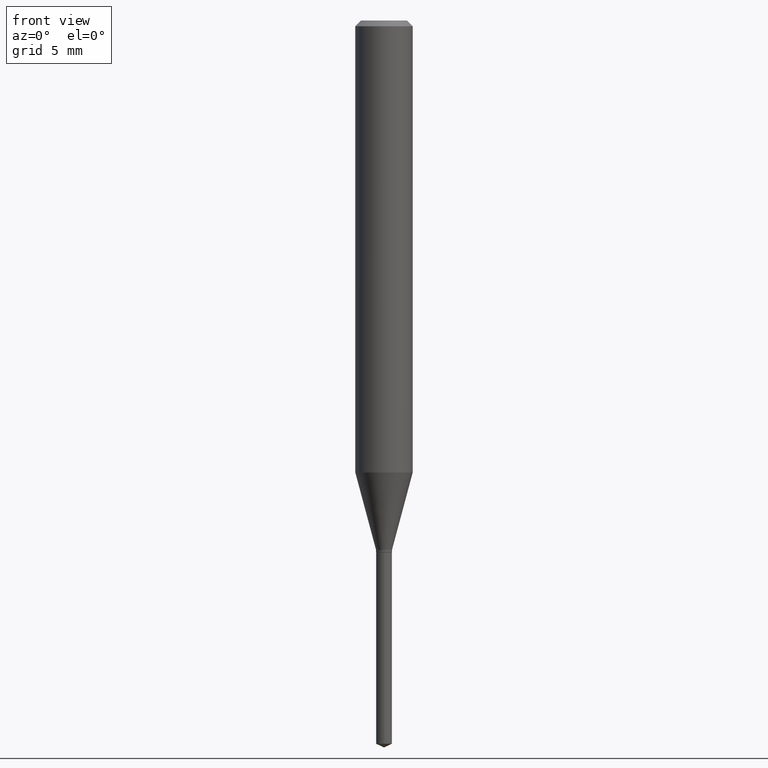
[diagram: clean part render]
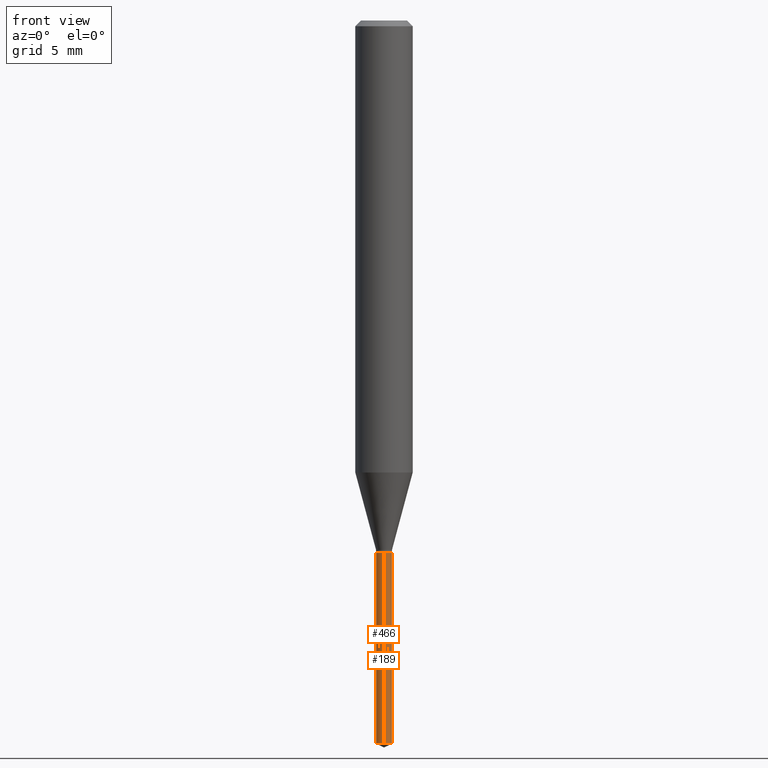
[diagram: same view with one multi-face feature highlighted, each face labeled with its STEP entity id]
A machine part, front view. The highlighted faces form ONE feature: a constant-radius fillet chain: 2 tangent blend faces with common blend radius 0.4153 mm. The faces share edges in the B-rep.
Their STEP definitions:
[1] entity #466 (Cylinder):
#5 = AXIS2_PLACEMENT_3D ( 'NONE', #285, #99, #211 ) ;
#10 = EDGE_CURVE ( 'NONE', #364, #276, #79, .T. ) ;
#25 = VERTEX_POINT ( 'NONE', #375 ) ;
#29 = CARTESIAN_POINT ( 'NONE',  ( 3.640018120713164370E-29, -5.196990287534057900E-15, -1.488475869789165795 ) ) ;
#62 = VERTEX_POINT ( 'NONE', #146 ) ;
#74 = DIRECTION ( 'NONE',  ( -6.982962677686265922E-15, -1.000000000000000000, 0.000000000000000000 ) ) ;
#77 = LINE ( 'NONE', #380, #228 ) ;
#79 = CIRCLE ( 'NONE', #395, 0.01634999999999999995 ) ;
#99 = DIRECTION ( 'NONE',  ( -2.445460715294871217E-29, 3.491492925458510144E-15, 1.000000000000000000 ) ) ;
#110 = DIRECTION ( 'NONE',  ( -2.445460715294871217E-29, 3.491492925458510144E-15, 1.000000000000000000 ) ) ;
#112 = DIRECTION ( 'NONE',  ( -6.982962677686265922E-15, -1.000000000000000000, 0.000000000000000000 ) ) ;
#117 = EDGE_CURVE ( 'NONE', #276, #62, #77, .T. ) ;
#128 = ORIENTED_EDGE ( 'NONE', *, *, #10, .T. ) ;
#146 = CARTESIAN_POINT ( 'NONE',  ( -1.141714397801436783E-16, -0.01635000000000381981, -1.094499999999999806 ) ) ;
#158 = AXIS2_PLACEMENT_3D ( 'NONE', #230, #449, #112 ) ;
#166 = FACE_OUTER_BOUND ( 'NONE', #243, .T. ) ;
#193 = DIRECTION ( 'NONE',  ( -2.445460715294871217E-29, 3.491492925458510144E-15, 1.000000000000000000 ) ) ;
#200 = CYLINDRICAL_SURFACE ( 'NONE', #5, 0.01634999999999999995 ) ;
#211 = DIRECTION ( 'NONE',  ( -6.982962677686265922E-15, -1.000000000000000000, 0.000000000000000000 ) ) ;
#228 = VECTOR ( 'NONE', #110, 39.37007874015748143 ) ;
#230 = CARTESIAN_POINT ( 'NONE',  ( 2.676565608369631794E-29, -3.821426325363822773E-15, -1.094499999999999806 ) ) ;
#243 = EDGE_LOOP ( 'NONE', ( #328, #128, #476, #436 ) ) ;
#246 = CARTESIAN_POINT ( 'NONE',  ( 1.161737372968127416E-16, 0.01634999999999479925, -1.488475869789165795 ) ) ;
#252 = CARTESIAN_POINT ( 'NONE',  ( -1.141714397801340394E-16, -0.01635000000000519371, -1.488475869789165795 ) ) ;
#255 = DIRECTION ( 'NONE',  ( -2.445460715294871217E-29, 3.491492925458510144E-15, 1.000000000000000000 ) ) ;
#270 = VECTOR ( 'NONE', #193, 39.37007874015748143 ) ;
#276 = VERTEX_POINT ( 'NONE', #252 ) ;
#285 = CARTESIAN_POINT ( 'NONE',  ( 2.676565608369631794E-29, -3.821426325363822773E-15, -1.094499999999999806 ) ) ;
#297 = CIRCLE ( 'NONE', #158, 0.01634999999999999995 ) ;
#305 = LINE ( 'NONE', #462, #270 ) ;
#312 = EDGE_CURVE ( 'NONE', #25, #62, #297, .T. ) ;
#328 = ORIENTED_EDGE ( 'NONE', *, *, #373, .F. ) ;
#364 = VERTEX_POINT ( 'NONE', #246 ) ;
#373 = EDGE_CURVE ( 'NONE', #364, #25, #305, .T. ) ;
#375 = CARTESIAN_POINT ( 'NONE',  ( 1.161737372968127909E-16, 0.01634999999999617315, -1.094499999999999806 ) ) ;
#380 = CARTESIAN_POINT ( 'NONE',  ( -1.141714397801436783E-16, -0.01635000000000381981, -1.094499999999999806 ) ) ;
#395 = AXIS2_PLACEMENT_3D ( 'NONE', #29, #255, #74 ) ;
#436 = ORIENTED_EDGE ( 'NONE', *, *, #312, .F. ) ;
#449 = DIRECTION ( 'NONE',  ( -2.445460715294871217E-29, 3.491492925458510144E-15, 1.000000000000000000 ) ) ;
#462 = CARTESIAN_POINT ( 'NONE',  ( 1.161737372968031274E-16, 0.01634999999999617662, -1.094499999999999806 ) ) ;
#466 = ADVANCED_FACE ( 'NONE', ( #166 ), #200, .T. ) ;
#476 = ORIENTED_EDGE ( 'NONE', *, *, #117, .T. ) ;
[2] entity #189 (Cylinder):
#12 = CARTESIAN_POINT ( 'NONE',  ( 2.676565608369631794E-29, -3.821426325363822773E-15, -1.094499999999999806 ) ) ;
#25 = VERTEX_POINT ( 'NONE', #375 ) ;
#34 = CARTESIAN_POINT ( 'NONE',  ( 2.676565608369631794E-29, -3.821426325363822773E-15, -1.094499999999999806 ) ) ;
#62 = VERTEX_POINT ( 'NONE', #146 ) ;
#68 = DIRECTION ( 'NONE',  ( -2.445460715294871217E-29, 3.491492925458510144E-15, 1.000000000000000000 ) ) ;
#77 = LINE ( 'NONE', #380, #228 ) ;
#101 = CARTESIAN_POINT ( 'NONE',  ( 3.640018120713164370E-29, -5.196990287534057900E-15, -1.488475869789165795 ) ) ;
#104 = DIRECTION ( 'NONE',  ( -6.982962677686265922E-15, -1.000000000000000000, 0.000000000000000000 ) ) ;
#105 = ORIENTED_EDGE ( 'NONE', *, *, #373, .T. ) ;
#110 = DIRECTION ( 'NONE',  ( -2.445460715294871217E-29, 3.491492925458510144E-15, 1.000000000000000000 ) ) ;
#117 = EDGE_CURVE ( 'NONE', #276, #62, #77, .T. ) ;
#118 = EDGE_CURVE ( 'NONE', #62, #25, #370, .T. ) ;
#129 = FACE_OUTER_BOUND ( 'NONE', #343, .T. ) ;
#146 = CARTESIAN_POINT ( 'NONE',  ( -1.141714397801436783E-16, -0.01635000000000381981, -1.094499999999999806 ) ) ;
#147 = DIRECTION ( 'NONE',  ( -2.445460715294871217E-29, 3.491492925458510144E-15, 1.000000000000000000 ) ) ;
#189 = ADVANCED_FACE ( 'NONE', ( #129 ), #355, .T. ) ;
#193 = DIRECTION ( 'NONE',  ( -2.445460715294871217E-29, 3.491492925458510144E-15, 1.000000000000000000 ) ) ;
#228 = VECTOR ( 'NONE', #110, 39.37007874015748143 ) ;
#246 = CARTESIAN_POINT ( 'NONE',  ( 1.161737372968127416E-16, 0.01634999999999479925, -1.488475869789165795 ) ) ;
#249 = DIRECTION ( 'NONE',  ( -6.982962677686265922E-15, -1.000000000000000000, 0.000000000000000000 ) ) ;
#252 = CARTESIAN_POINT ( 'NONE',  ( -1.141714397801340394E-16, -0.01635000000000519371, -1.488475869789165795 ) ) ;
#265 = CIRCLE ( 'NONE', #486, 0.01634999999999999995 ) ;
#270 = VECTOR ( 'NONE', #193, 39.37007874015748143 ) ;
#272 = EDGE_CURVE ( 'NONE', #276, #364, #265, .T. ) ;
#276 = VERTEX_POINT ( 'NONE', #252 ) ;
#305 = LINE ( 'NONE', #462, #270 ) ;
#323 = DIRECTION ( 'NONE',  ( -2.445460715294871217E-29, 3.491492925458510144E-15, 1.000000000000000000 ) ) ;
#337 = AXIS2_PLACEMENT_3D ( 'NONE', #34, #147, #450 ) ;
#343 = EDGE_LOOP ( 'NONE', ( #369, #105, #448, #362 ) ) ;
#355 = CYLINDRICAL_SURFACE ( 'NONE', #444, 0.01634999999999999995 ) ;
#362 = ORIENTED_EDGE ( 'NONE', *, *, #117, .F. ) ;
#364 = VERTEX_POINT ( 'NONE', #246 ) ;
#369 = ORIENTED_EDGE ( 'NONE', *, *, #272, .T. ) ;
#370 = CIRCLE ( 'NONE', #337, 0.01634999999999999995 ) ;
#373 = EDGE_CURVE ( 'NONE', #364, #25, #305, .T. ) ;
#375 = CARTESIAN_POINT ( 'NONE',  ( 1.161737372968127909E-16, 0.01634999999999617315, -1.094499999999999806 ) ) ;
#380 = CARTESIAN_POINT ( 'NONE',  ( -1.141714397801436783E-16, -0.01635000000000381981, -1.094499999999999806 ) ) ;
#444 = AXIS2_PLACEMENT_3D ( 'NONE', #12, #68, #104 ) ;
#448 = ORIENTED_EDGE ( 'NONE', *, *, #118, .F. ) ;
#450 = DIRECTION ( 'NONE',  ( -6.982962677686265922E-15, -1.000000000000000000, 0.000000000000000000 ) ) ;
#462 = CARTESIAN_POINT ( 'NONE',  ( 1.161737372968031274E-16, 0.01634999999999617662, -1.094499999999999806 ) ) ;
#486 = AXIS2_PLACEMENT_3D ( 'NONE', #101, #323, #249 ) ;